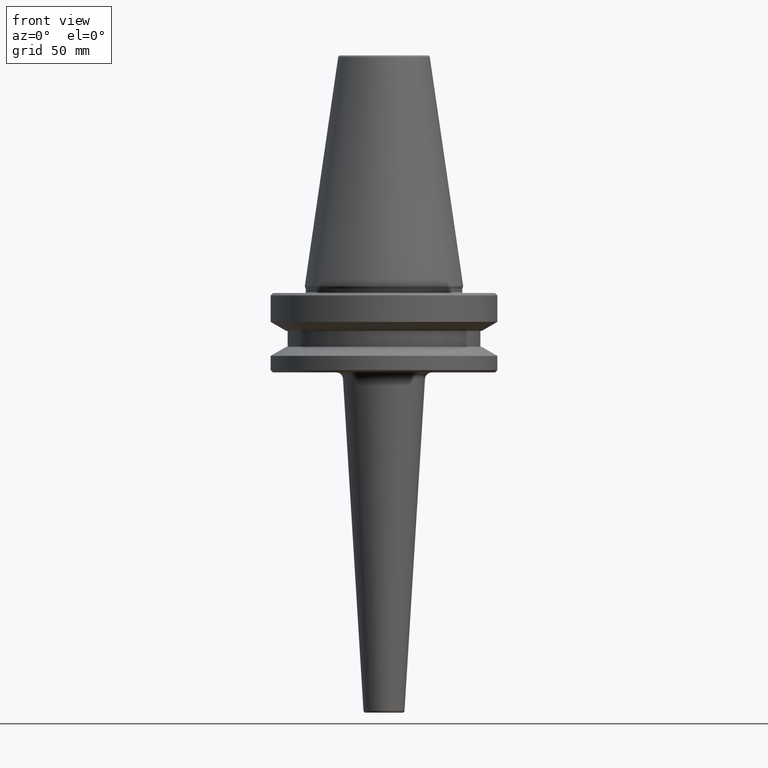
[diagram: clean part render]
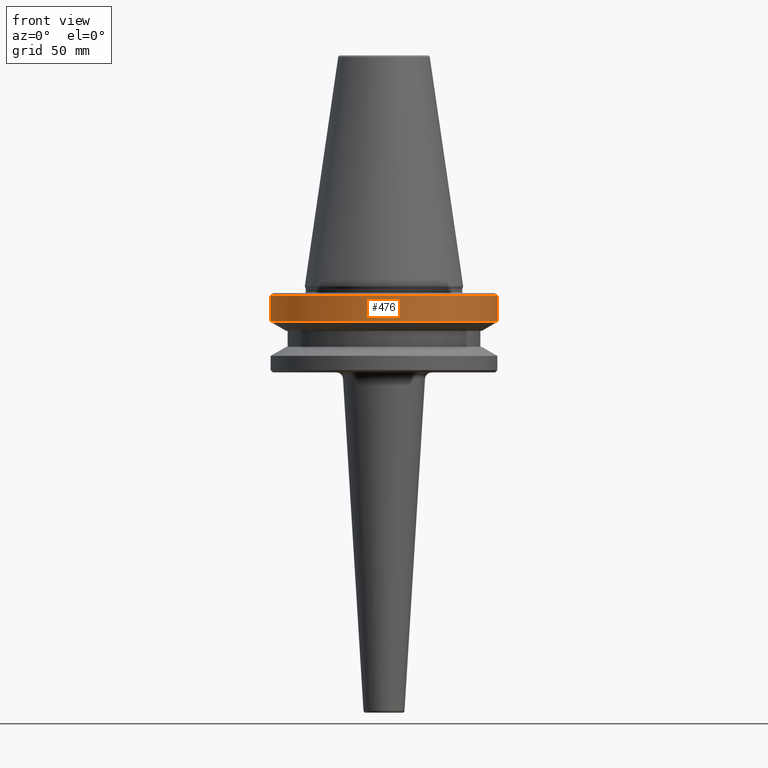
[diagram: same view with one face highlighted and labeled with its STEP entity id]
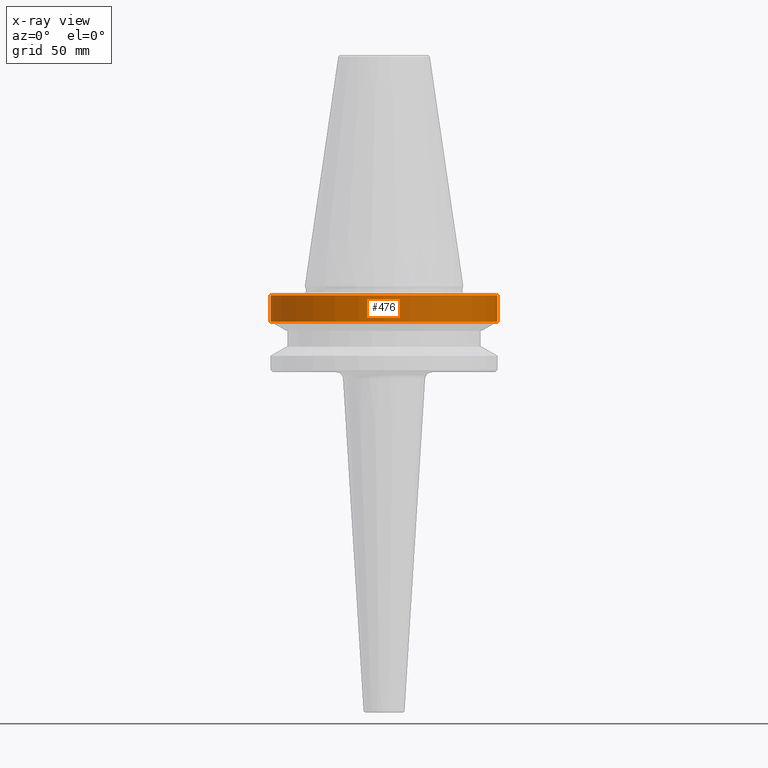
[diagram: x-ray of the same camera — body ghosted, the highlighted face saturated]
A machine part, front view. The second image highlights one B-rep face of the part: STEP entity #476.
The next image is the same camera in x-ray: the body ghosted, the highlighted face saturated — about 0% of this face is hidden behind the body in this view.
In plain terms, the highlighted cylindrical surface (partial cylindrical patch) has radius 50 mm, axis along (-0, -0, 1).
Its self-contained STEP definition (entity closure, byte-faithful):
#5 = DIRECTION ( 'NONE',  ( 1.000000000000000000, 0.0000000000000000000, 0.0000000000000000000 ) ) ;
#67 = DIRECTION ( 'NONE',  ( -0.0000000000000000000, -0.0000000000000000000, 1.000000000000000000 ) ) ;
#71 = CARTESIAN_POINT ( 'NONE',  ( 0.0000000000000000000, 0.0000000000000000000, -15.70022000322675400 ) ) ;
#105 = CARTESIAN_POINT ( 'NONE',  ( 50.00000000000000000, 0.0000000000000000000, 124.5046326327850600 ) ) ;
#127 = CARTESIAN_POINT ( 'NONE',  ( -50.00000000000000000, 6.123233995736766100E-015, -3.999999999999989800 ) ) ;
#134 = VECTOR ( 'NONE', #440, 1000.000000000000000 ) ;
#155 = DIRECTION ( 'NONE',  ( -0.0000000000000000000, -0.0000000000000000000, 1.000000000000000000 ) ) ;
#179 = VERTEX_POINT ( 'NONE', #587 ) ;
#215 = VECTOR ( 'NONE', #247, 1000.000000000000000 ) ;
#232 = CARTESIAN_POINT ( 'NONE',  ( -50.00000000000000000, 6.123233995736766100E-015, 124.5046326327850600 ) ) ;
#236 = AXIS2_PLACEMENT_3D ( 'NONE', #703, #67, #5 ) ;
#247 = DIRECTION ( 'NONE',  ( -0.0000000000000000000, -0.0000000000000000000, 1.000000000000000000 ) ) ;
#277 = EDGE_CURVE ( 'NONE', #179, #427, #953, .T. ) ;
#285 = EDGE_CURVE ( 'NONE', #536, #671, #798, .T. ) ;
#337 = EDGE_CURVE ( 'NONE', #671, #427, #365, .T. ) ;
#364 = ORIENTED_EDGE ( 'NONE', *, *, #277, .T. ) ;
#365 = CIRCLE ( 'NONE', #236, 50.00000000000000000 ) ;
#427 = VERTEX_POINT ( 'NONE', #666 ) ;
#440 = DIRECTION ( 'NONE',  ( -0.0000000000000000000, -0.0000000000000000000, 1.000000000000000000 ) ) ;
#453 = ORIENTED_EDGE ( 'NONE', *, *, #460, .T. ) ;
#459 = CIRCLE ( 'NONE', #653, 50.00000000000000000 ) ;
#460 = EDGE_CURVE ( 'NONE', #536, #179, #459, .T. ) ;
#476 = ADVANCED_FACE ( 'NONE', ( #884 ), #563, .T. ) ;
#536 = VERTEX_POINT ( 'NONE', #793 ) ;
#563 = CYLINDRICAL_SURFACE ( 'NONE', #726, 50.00000000000000000 ) ;
#587 = CARTESIAN_POINT ( 'NONE',  ( 50.00000000000000000, 0.0000000000000000000, -15.70022000322675400 ) ) ;
#613 = DIRECTION ( 'NONE',  ( -0.0000000000000000000, -0.0000000000000000000, 1.000000000000000000 ) ) ;
#632 = CARTESIAN_POINT ( 'NONE',  ( 0.0000000000000000000, 0.0000000000000000000, 124.5046326327850600 ) ) ;
#637 = DIRECTION ( 'NONE',  ( 1.000000000000000000, 0.0000000000000000000, 0.0000000000000000000 ) ) ;
#653 = AXIS2_PLACEMENT_3D ( 'NONE', #71, #613, #770 ) ;
#666 = CARTESIAN_POINT ( 'NONE',  ( 50.00000000000000000, 0.0000000000000000000, -3.999999999999989800 ) ) ;
#671 = VERTEX_POINT ( 'NONE', #127 ) ;
#703 = CARTESIAN_POINT ( 'NONE',  ( 0.0000000000000000000, 0.0000000000000000000, -3.999999999999989800 ) ) ;
#726 = AXIS2_PLACEMENT_3D ( 'NONE', #632, #155, #637 ) ;
#770 = DIRECTION ( 'NONE',  ( 1.000000000000000000, 0.0000000000000000000, 0.0000000000000000000 ) ) ;
#793 = CARTESIAN_POINT ( 'NONE',  ( -50.00000000000000000, 6.123233995736766900E-015, -15.70022000322675400 ) ) ;
#798 = LINE ( 'NONE', #232, #134 ) ;
#831 = EDGE_LOOP ( 'NONE', ( #903, #453, #364, #846 ) ) ;
#846 = ORIENTED_EDGE ( 'NONE', *, *, #337, .F. ) ;
#884 = FACE_OUTER_BOUND ( 'NONE', #831, .T. ) ;
#903 = ORIENTED_EDGE ( 'NONE', *, *, #285, .F. ) ;
#953 = LINE ( 'NONE', #105, #215 ) ;